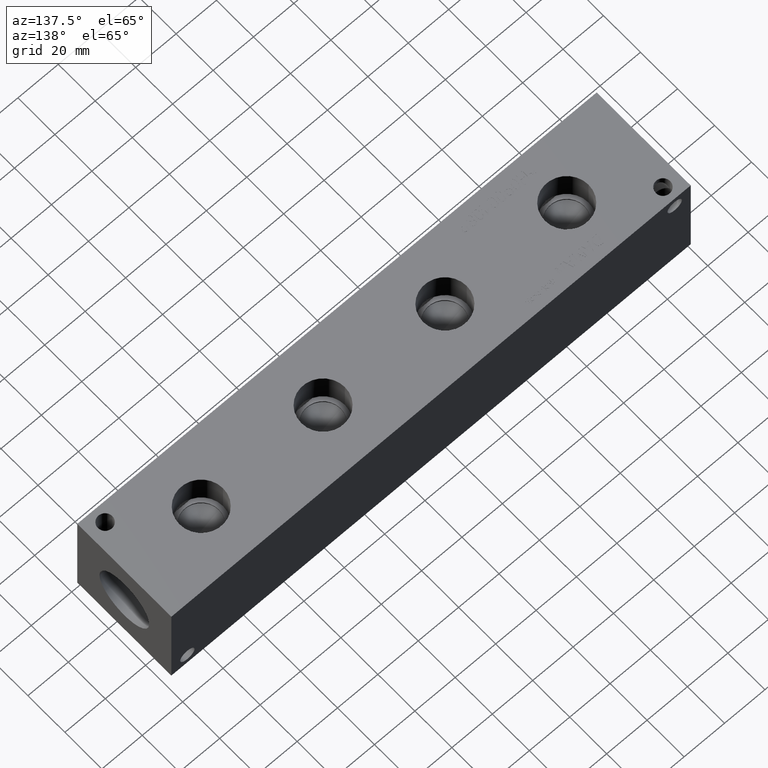
[diagram: clean part render]
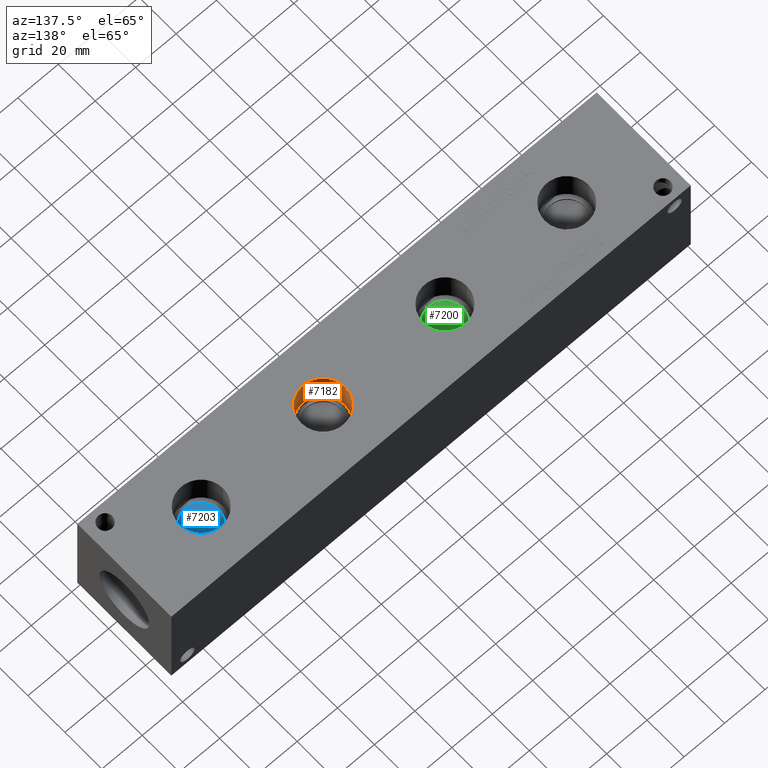
[diagram: same view with three faces highlighted in distinct colors, each labeled with its STEP entity id]
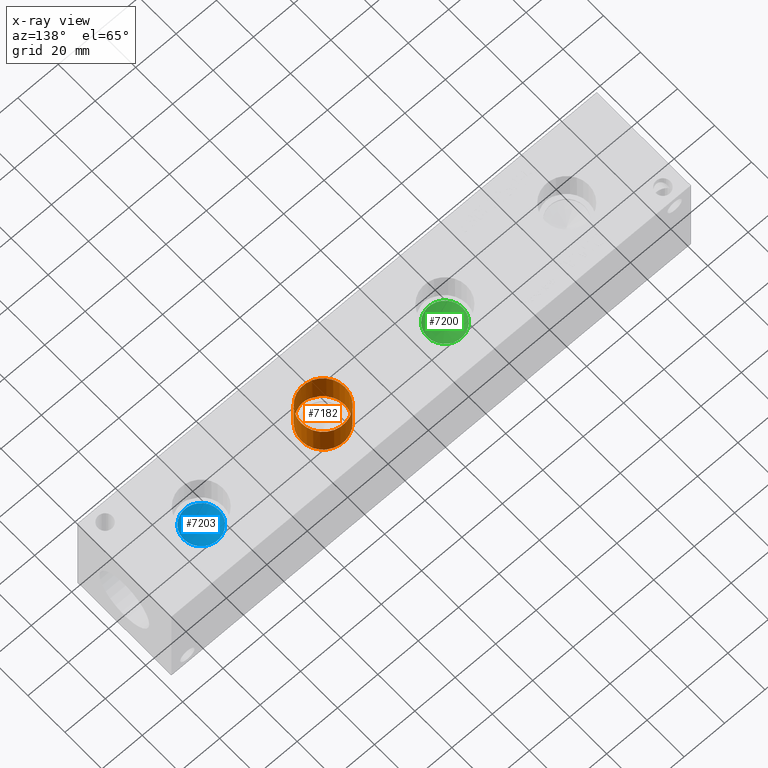
[diagram: x-ray of the same camera — body ghosted, the three highlighted faces saturated]
A machine part, auxiliary view with three faces highlighted in distinct colors.
The next image is the same camera in x-ray (body ghosted, the three faces saturated) — at least one of them is partly hidden behind the body in this view.
Their STEP definitions:

[orange] entity #7182 — the highlighted cylindrical surface (bore or boss wall) has radius 10.795 mm, axis along (0, 0, 1).
#24=ELLIPSE('',#7460,15.2664354058176,10.795);
#44=CYLINDRICAL_SURFACE('',#7504,10.795);
#68=CIRCLE('',#7305,10.795);
#69=CIRCLE('',#7306,10.795);
#104=CIRCLE('',#7505,10.795);
#105=CIRCLE('',#7506,10.795);
#759=FACE_OUTER_BOUND('',#1166,.T.);
#1166=EDGE_LOOP('',(#6248,#6249,#6250,#6251,#6252,#6253,#6254));
#1881=LINE('',#12181,#2574);
#2574=VECTOR('',#8795,10.795);
#3238=VERTEX_POINT('',#11401);
#3239=VERTEX_POINT('',#11402);
#3393=VERTEX_POINT('',#12086);
#3394=VERTEX_POINT('',#12088);
#3426=VERTEX_POINT('',#12180);
#4054=EDGE_CURVE('',#3238,#3239,#68,.T.);
#4055=EDGE_CURVE('',#3239,#3238,#69,.T.);
#4341=EDGE_CURVE('',#3394,#3393,#24,.T.);
#4385=EDGE_CURVE('',#3239,#3426,#1881,.T.);
#4386=EDGE_CURVE('',#3394,#3426,#104,.T.);
#4387=EDGE_CURVE('',#3426,#3393,#105,.T.);
#6248=ORIENTED_EDGE('',*,*,#4054,.F.);
#6249=ORIENTED_EDGE('',*,*,#4055,.F.);
#6250=ORIENTED_EDGE('',*,*,#4385,.T.);
#6251=ORIENTED_EDGE('',*,*,#4386,.F.);
#6252=ORIENTED_EDGE('',*,*,#4341,.T.);
#6253=ORIENTED_EDGE('',*,*,#4387,.F.);
#6254=ORIENTED_EDGE('',*,*,#4385,.F.);
#7182=ADVANCED_FACE('',(#759),#44,.F.);
#7305=AXIS2_PLACEMENT_3D('',#11403,#8116,#8117);
#7306=AXIS2_PLACEMENT_3D('',#11404,#8118,#8119);
#7460=AXIS2_PLACEMENT_3D('',#12089,#8690,#8691);
#7504=AXIS2_PLACEMENT_3D('',#12179,#8793,#8794);
#7505=AXIS2_PLACEMENT_3D('',#12182,#8796,#8797);
#7506=AXIS2_PLACEMENT_3D('',#12183,#8798,#8799);
#8116=DIRECTION('center_axis',(0.,0.,-1.));
#8117=DIRECTION('ref_axis',(1.,0.,0.));
#8118=DIRECTION('center_axis',(0.,0.,-1.));
#8119=DIRECTION('ref_axis',(1.,0.,0.));
#8690=DIRECTION('center_axis',(0.,-0.707106781186548,-0.707106781186547));
#8691=DIRECTION('ref_axis',(0.,-0.707106781186547,0.707106781186548));
#8793=DIRECTION('center_axis',(0.,0.,1.));
#8794=DIRECTION('ref_axis',(1.,0.,0.));
#8795=DIRECTION('',(0.,0.,-1.));
#8796=DIRECTION('center_axis',(0.,0.,1.));
#8797=DIRECTION('ref_axis',(1.,0.,0.));
#8798=DIRECTION('center_axis',(0.,0.,1.));
#8799=DIRECTION('ref_axis',(1.,0.,0.));
#11401=CARTESIAN_POINT('',(169.545,25.4,50.8));
#11402=CARTESIAN_POINT('',(147.955,25.4,50.8));
#11403=CARTESIAN_POINT('Origin',(158.75,25.4,50.8));
#11404=CARTESIAN_POINT('Origin',(158.75,25.4,50.8));
#12086=CARTESIAN_POINT('',(154.766165666095,15.367,35.433));
#12088=CARTESIAN_POINT('',(162.733834333905,15.367,35.433));
#12089=CARTESIAN_POINT('Origin',(158.75,25.4,25.4));
#12179=CARTESIAN_POINT('Origin',(158.75,25.4,43.1165));
#12180=CARTESIAN_POINT('',(147.955,25.4,35.433));
#12181=CARTESIAN_POINT('',(147.955,25.4,43.1165));
#12182=CARTESIAN_POINT('Origin',(158.75,25.4,35.433));
#12183=CARTESIAN_POINT('Origin',(158.75,25.4,35.433));

[blue] entity #7203 — the highlighted conical surface has half-angle 60 deg.
#21=CONICAL_SURFACE('',#7558,4.3688,1.0471975511966);
#129=CIRCLE('',#7559,8.7376);
#130=CIRCLE('',#7560,8.7376);
#780=FACE_OUTER_BOUND('',#1190,.T.);
#1190=EDGE_LOOP('',(#6359,#6360,#6361,#6362));
#1899=LINE('',#12284,#2592);
#2592=VECTOR('',#8923,4.3688);
#3454=VERTEX_POINT('',#12280);
#3455=VERTEX_POINT('',#12281);
#3456=VERTEX_POINT('',#12283);
#4436=EDGE_CURVE('',#3454,#3455,#129,.T.);
#4437=EDGE_CURVE('',#3455,#3456,#1899,.T.);
#4438=EDGE_CURVE('',#3455,#3454,#130,.T.);
#6359=ORIENTED_EDGE('',*,*,#4436,.T.);
#6360=ORIENTED_EDGE('',*,*,#4437,.T.);
#6361=ORIENTED_EDGE('',*,*,#4437,.F.);
#6362=ORIENTED_EDGE('',*,*,#4438,.T.);
#7203=ADVANCED_FACE('',(#780),#21,.F.);
#7558=AXIS2_PLACEMENT_3D('',#12279,#8919,#8920);
#7559=AXIS2_PLACEMENT_3D('',#12282,#8921,#8922);
#7560=AXIS2_PLACEMENT_3D('',#12285,#8924,#8925);
#8919=DIRECTION('center_axis',(0.,0.,1.));
#8920=DIRECTION('ref_axis',(1.,0.,0.));
#8921=DIRECTION('center_axis',(0.,0.,1.));
#8922=DIRECTION('ref_axis',(1.,0.,0.));
#8923=DIRECTION('',(0.866025403784439,1.06057523872491E-16,-0.5));
#8924=DIRECTION('center_axis',(0.,0.,1.));
#8925=DIRECTION('ref_axis',(1.,0.,0.));
#12279=CARTESIAN_POINT('Origin',(219.075,25.4,32.4062021439644));
#12280=CARTESIAN_POINT('',(227.8126,25.4,34.92853));
#12281=CARTESIAN_POINT('',(210.3374,25.4,34.92853));
#12282=CARTESIAN_POINT('Origin',(219.075,25.4,34.92853));
#12283=CARTESIAN_POINT('',(219.075,25.4,29.8838742879287));
#12284=CARTESIAN_POINT('',(214.7062,25.4,32.4062021439644));
#12285=CARTESIAN_POINT('Origin',(219.075,25.4,34.92853));

[green] entity #7200 — the highlighted conical surface has half-angle 60 deg.
#20=CONICAL_SURFACE('',#7552,4.3688,1.0471975511966);
#126=CIRCLE('',#7553,8.7376);
#127=CIRCLE('',#7554,8.7376);
#777=FACE_OUTER_BOUND('',#1186,.T.);
#1186=EDGE_LOOP('',(#6346,#6347,#6348,#6349));
#1897=LINE('',#12272,#2590);
#2590=VECTOR('',#8909,4.3688);
#3450=VERTEX_POINT('',#12268);
#3451=VERTEX_POINT('',#12269);
#3452=VERTEX_POINT('',#12271);
#4431=EDGE_CURVE('',#3450,#3451,#126,.T.);
#4432=EDGE_CURVE('',#3451,#3452,#1897,.T.);
#4433=EDGE_CURVE('',#3451,#3450,#127,.T.);
#6346=ORIENTED_EDGE('',*,*,#4431,.T.);
#6347=ORIENTED_EDGE('',*,*,#4432,.T.);
#6348=ORIENTED_EDGE('',*,*,#4432,.F.);
#6349=ORIENTED_EDGE('',*,*,#4433,.T.);
#7200=ADVANCED_FACE('',(#777),#20,.F.);
#7552=AXIS2_PLACEMENT_3D('',#12267,#8905,#8906);
#7553=AXIS2_PLACEMENT_3D('',#12270,#8907,#8908);
#7554=AXIS2_PLACEMENT_3D('',#12273,#8910,#8911);
#8905=DIRECTION('center_axis',(0.,0.,1.));
#8906=DIRECTION('ref_axis',(1.,0.,0.));
#8907=DIRECTION('center_axis',(0.,0.,1.));
#8908=DIRECTION('ref_axis',(1.,0.,0.));
#8909=DIRECTION('',(0.866025403784439,1.06057523872491E-16,-0.5));
#8910=DIRECTION('center_axis',(0.,0.,1.));
#8911=DIRECTION('ref_axis',(1.,0.,0.));
#12267=CARTESIAN_POINT('Origin',(98.425,25.4,32.4062021439644));
#12268=CARTESIAN_POINT('',(107.1626,25.4,34.92853));
#12269=CARTESIAN_POINT('',(89.6874,25.4,34.92853));
#12270=CARTESIAN_POINT('Origin',(98.425,25.4,34.92853));
#12271=CARTESIAN_POINT('',(98.425,25.4,29.8838742879287));
#12272=CARTESIAN_POINT('',(94.0562,25.4,32.4062021439644));
#12273=CARTESIAN_POINT('Origin',(98.425,25.4,34.92853));